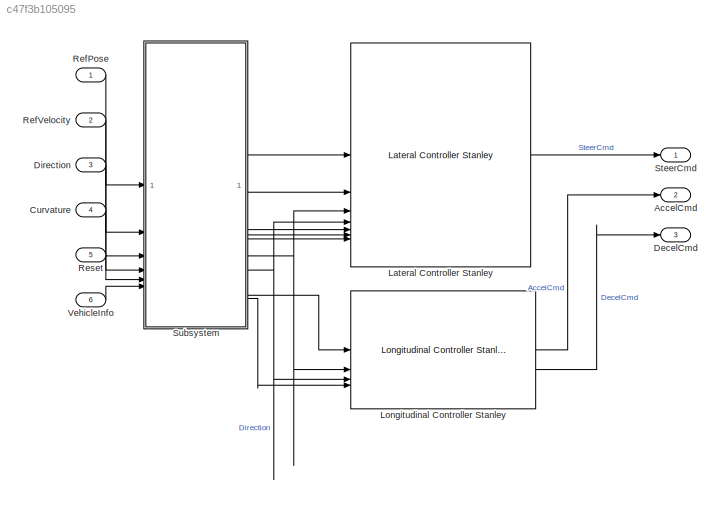
MODEL slx_c47f3b105095
KIND model
CONFIG AbsTol = auto
CONFIG EnableMultiTasking = off
CONFIG FixedStep = 0.05
CONFIG MaxStep = 1e-2
CONFIG MinStep = 1e-3
CONFIG RelTol = 5e-3
CONFIG SampleTimeConstraint = Unconstrained
CONFIG SolverName = FixedStepAuto
CONFIG StartTime = 0.0
CONFIG StopTime = inf
BLOCK [Outport] AccelCmd
  Port = 2
  VectorParamsAs1DForOutWhenUnconnected = off
BLOCK [Inport] Curvature
  OutDataTypeStr = double
  Port = 4
  PortDimensions = [1 1]
  SampleTime = [0.050000000000000003,0]
  SamplingMode = Sample based
  SignalType = real
BLOCK [Outport] DecelCmd
  Port = 3
  VectorParamsAs1DForOutWhenUnconnected = off
BLOCK [Inport] Direction
  OutDataTypeStr = double
  Port = 3
  PortDimensions = [1 1]
  SampleTime = [0.050000000000000003,0]
  SamplingMode = Sample based
  SignalType = real
BLOCK [Reference] Lateral Controller Stanley  REF=drivingvehiclecontroller/Lateral Controller Stanley
  SourceBlock = drivingvehiclecontroller/Lateral Controller Stanley
  SourceType = Lateral Controller Stanley
BLOCK [Reference] Longitudinal Controller Stanley  REF=drivingvehiclecontroller/Longitudinal Controller Stanley
  SourceBlock = drivingvehiclecontroller/Longitudinal Controller Stanley
  SourceType = Longitudinal Controller Stanley
BLOCK [Inport] RefPose
  OutDataTypeStr = double
  PortDimensions = [1 3]
  SampleTime = [0.050000000000000003,0]
  SamplingMode = Sample based
  SignalType = real
BLOCK [Inport] RefVelocity
  OutDataTypeStr = double
  Port = 2
  PortDimensions = [1 1]
  SampleTime = [0.050000000000000003,0]
  SamplingMode = Sample based
  SignalType = real
BLOCK [Inport] Reset
  OutDataTypeStr = double
  Port = 5
  PortDimensions = [1 1]
  SampleTime = [0.050000000000000003,0]
  SamplingMode = Sample based
  SignalType = real
BLOCK [Outport] SteerCmd
  VectorParamsAs1DForOutWhenUnconnected = off
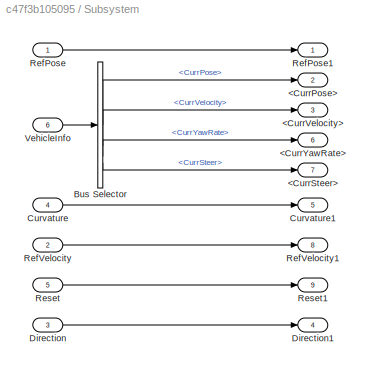
BLOCK [SubSystem] Subsystem
BLOCK [Outport] Subsystem/<CurrPose>
  Port = 2
  VectorParamsAs1DForOutWhenUnconnected = off
BLOCK [Outport] Subsystem/<CurrSteer>
  Port = 7
  VectorParamsAs1DForOutWhenUnconnected = off
BLOCK [Outport] Subsystem/<CurrVelocity>
  Port = 3
  VectorParamsAs1DForOutWhenUnconnected = off
BLOCK [Outport] Subsystem/<CurrYawRate>
  Port = 6
  VectorParamsAs1DForOutWhenUnconnected = off
BLOCK [BusSelector] Subsystem/Bus Selector
  OutputSignals = CurrPose,CurrVelocity,CurrYawRate,CurrSteer
BLOCK [Inport] Subsystem/Curvature
  Port = 4
BLOCK [Outport] Subsystem/Curvature1
  Port = 5
  VectorParamsAs1DForOutWhenUnconnected = off
BLOCK [Inport] Subsystem/Direction
  Port = 3
BLOCK [Outport] Subsystem/Direction1
  Port = 4
  VectorParamsAs1DForOutWhenUnconnected = off
BLOCK [Inport] Subsystem/RefPose
BLOCK [Outport] Subsystem/RefPose1
  VectorParamsAs1DForOutWhenUnconnected = off
BLOCK [Inport] Subsystem/RefVelocity
  Port = 2
BLOCK [Outport] Subsystem/RefVelocity1
  Port = 8
  VectorParamsAs1DForOutWhenUnconnected = off
BLOCK [Inport] Subsystem/Reset
  Port = 5
BLOCK [Outport] Subsystem/Reset1
  Port = 9
  VectorParamsAs1DForOutWhenUnconnected = off
BLOCK [Inport] Subsystem/VehicleInfo
  Port = 6
BLOCK [Inport] VehicleInfo
  OutDataTypeStr = Bus: vehicleInfoBus
  Port = 6
LINE Curvature:1 -> Subsystem:4
LINE Direction:1 -> Subsystem:3
LINE Lateral Controller Stanley:1 -> SteerCmd:1
LINE Longitudinal Controller Stanley:1 -> AccelCmd:1
LINE Longitudinal Controller Stanley:2 -> DecelCmd:1
LINE RefPose:1 -> Subsystem:1
LINE RefVelocity:1 -> Subsystem:2
LINE Reset:1 -> Subsystem:5
LINE Subsystem/Bus Selector:1 -> Subsystem/<CurrPose>:1
LINE Subsystem/Bus Selector:2 -> Subsystem/<CurrVelocity>:1
LINE Subsystem/Bus Selector:3 -> Subsystem/<CurrYawRate>:1
LINE Subsystem/Bus Selector:4 -> Subsystem/<CurrSteer>:1
LINE Subsystem/Curvature:1 -> Subsystem/Curvature1:1
LINE Subsystem/Direction:1 -> Subsystem/Direction1:1
LINE Subsystem/RefPose:1 -> Subsystem/RefPose1:1
LINE Subsystem/RefVelocity:1 -> Subsystem/RefVelocity1:1
LINE Subsystem/Reset:1 -> Subsystem/Reset1:1
LINE Subsystem/VehicleInfo:1 -> Subsystem/Bus Selector:1
LINE Subsystem:1 -> Lateral Controller Stanley:1
LINE Subsystem:2 -> Lateral Controller Stanley:2
NET Subsystem:3 -> Lateral Controller Stanley:3, Longitudinal Controller Stanley:2
NET Subsystem:4 -> Lateral Controller Stanley:4, Longitudinal Controller Stanley:3
LINE Subsystem:5 -> Lateral Controller Stanley:5
LINE Subsystem:6 -> Lateral Controller Stanley:6
LINE Subsystem:7 -> Lateral Controller Stanley:7
LINE Subsystem:8 -> Longitudinal Controller Stanley:1
LINE Subsystem:9 -> Longitudinal Controller Stanley:4
LINE VehicleInfo:1 -> Subsystem:6
note: NET lines group one-source signal fan-out (src -> all destinations, sorted); 1:1 wires keep LINE
